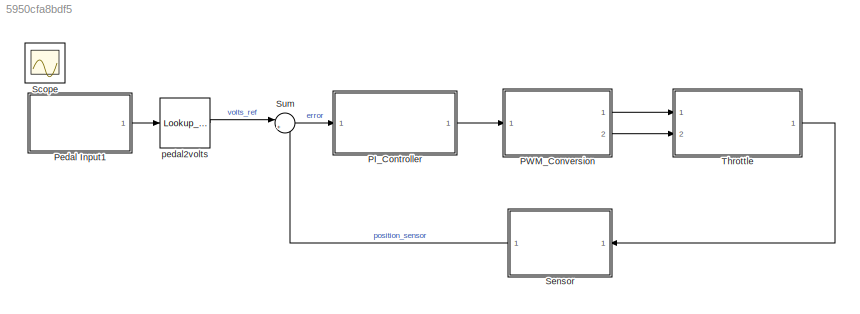
MODEL slx_5950cfa8bdf5
KIND model
CONFIG AbsTol = auto
CONFIG EnableMultiTasking = on
CONFIG FixedStep = auto
CONFIG MaxStep = auto
CONFIG MinStep = auto
CONFIG PreLoadFcn = load allParamValues.mat
CONFIG RelTol = 1e-3
CONFIG SampleTimeConstraint = Unconstrained
CONFIG Solver = ode45
CONFIG SolverName = ode45
CONFIG StartTime = 0.0
CONFIG StopTime = 10.0
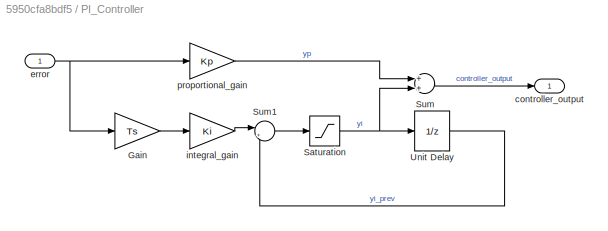
BLOCK [SubSystem] PI_Controller
  Ports = [1, 1]
  RequestExecContextInheritance = off
BLOCK [Gain] PI_Controller/Gain
  Gain = Ts
BLOCK [Saturate] PI_Controller/Saturation
  AttributesFormatString = Max: %<UpperLimit>\nMin: %<LowerLimit>
  InputPortMap = u0
  LowerLimit = -1
  Ports = [1, 1]
  UpperLimit = 1
BLOCK [Sum] PI_Controller/Sum
  Ports = [2, 1]
BLOCK [Sum] PI_Controller/Sum1
  IconShape = round
  Inputs = |++
  Ports = [2, 1]
BLOCK [UnitDelay] PI_Controller/Unit Delay
  AttributesFormatString = yi0 = %<X0>\nSample time = %<SampleTime>
  SampleTime = Ts
BLOCK [Outport] PI_Controller/controller_output
  IconDisplay = Port number
BLOCK [Inport] PI_Controller/error
  IconDisplay = Port number
  SampleTime = Ts
BLOCK [Gain] PI_Controller/integral_gain
  Gain = Ki
BLOCK [Gain] PI_Controller/proportional_gain
  Gain = Kp
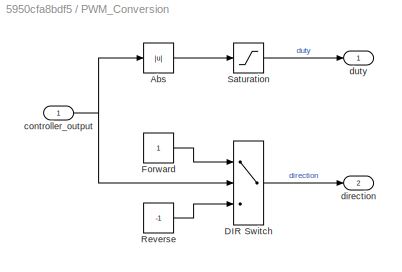
BLOCK [SubSystem] PWM_Conversion
  Ports = [1, 2]
  RequestExecContextInheritance = off
BLOCK [Outport] PWM_Conversion/ direction
  IconDisplay = Port number
  Port = 2
BLOCK [Abs] PWM_Conversion/Abs
  SaturateOnIntegerOverflow = off
BLOCK [Switch] PWM_Conversion/DIR Switch
  AttributesFormatString = Criteria: %<Criteria>\nThreshold: %<Threshold>
  InputSameDT = off
  SaturateOnIntegerOverflow = off
BLOCK [Constant] PWM_Conversion/Forward
  OutDataTypeStr = double
BLOCK [Constant] PWM_Conversion/Reverse
  OutDataTypeStr = double
  Value = -1
BLOCK [Saturate] PWM_Conversion/Saturation
  AttributesFormatString = %<LowerLimit> < duty < %<UpperLimit>
  InputPortMap = u0
  LowerLimit = 0
  Ports = [1, 1]
  UpperLimit = 1
BLOCK [Inport] PWM_Conversion/controller_output
  IconDisplay = Port number
BLOCK [Outport] PWM_Conversion/duty 
  IconDisplay = Port number
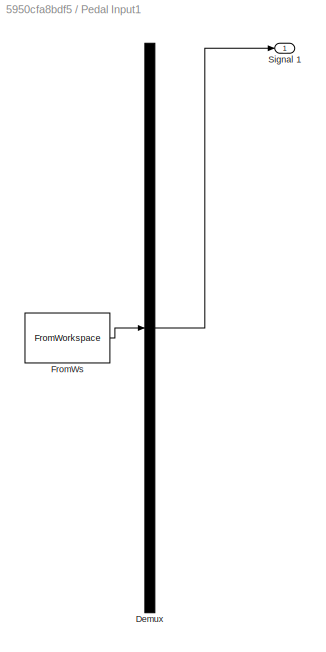
BLOCK [SubSystem] Pedal Input1
  AttributesFormatString = 0 - Pedal not pressed\n1 - Pedal fully pressed
  ClipboardFcn = sigbuilder_block('clipboard');
  CloseFcn = sigbuilder_block('close');
  ContinueFcn = sigbuilder_block('continue')
  CopyFcn = sigbuilder_block('copy');
  DeleteFcn = sigbuilder_block('delete');
  LoadFcn = sigbuilder_block('load');
  MaskHideContents = on
  ModelCloseFcn = sigbuilder_block('modelClose');
  NameChangeFcn = sigbuilder_block('namechange');
  OpenFcn = sigbuilder_block('open',[437.6 199.2 550.4 400 ]);
  PauseFcn = sigbuilder_block('pause')
  Ports = [0, 1]
  PreSaveFcn = sigbuilder_block('preSave');
  RequestExecContextInheritance = off
  StartFcn = sigbuilder_block('start');
  StopFcn = sigbuilder_block('stop');
  Tag = STV Subsys
BLOCK [Demux] Pedal Input1/Demux
  Outputs = 1
  Ports = [1, 1]
  Tag = STV Demux
BLOCK [FromWorkspace] Pedal Input1/FromWs
  SampleTime = 0
  Tag = STV FromWs
  VariableName = tuvar
  ZeroCross = on
BLOCK [Outport] Pedal Input1/Signal 1
  IconDisplay = Port number
  Tag = STV Outport
BLOCK [Scope] Scope
  Floating = off
  IOType = viewer
  NumInputPorts = 1
  Ports = []
  ScopeSpecificationString = Simulink.scopes.TimeScopeBlockCfg('CurrentConfiguration', extmgr.ConfigurationSet(extmgr.Configuration('Core','General UI',true),extmgr.Configuration('Core','Source UI',true),extmgr.Configuration('Sources','WiredSimulink',true,'DataLoggingMaxPoints','7500','DataLoggingLimitDataPoints',true,'DataLoggingSaveFormat','Array','DataLoggingDecimation','1','DataLoggingDecimateData',true),extmgr.Configurat...<+2102ch>
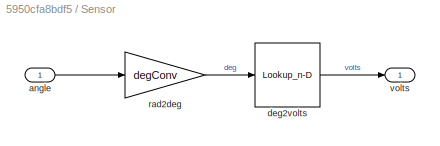
BLOCK [SubSystem] Sensor
  Ports = [1, 1]
  RequestExecContextInheritance = off
BLOCK [Inport] Sensor/angle
  IconDisplay = Port number
BLOCK [Lookup_n-D] Sensor/deg2volts
  BreakpointsForDimension1 = [0 90]
  NumberOfTableDimensions = 1
  Ports = [1, 1]
  RndMeth = Simplest
  Table = [0.5 4.5]
BLOCK [Gain] Sensor/rad2deg
  Gain = degConv
BLOCK [Outport] Sensor/volts
  IconDisplay = Port number
BLOCK [Sum] Sum
  IconShape = round
  InputSameDT = off
  Inputs = |+-
  OutDataTypeStr = Inherit: Inherit via internal rule
  Ports = [2, 1]
  SaturateOnIntegerOverflow = off
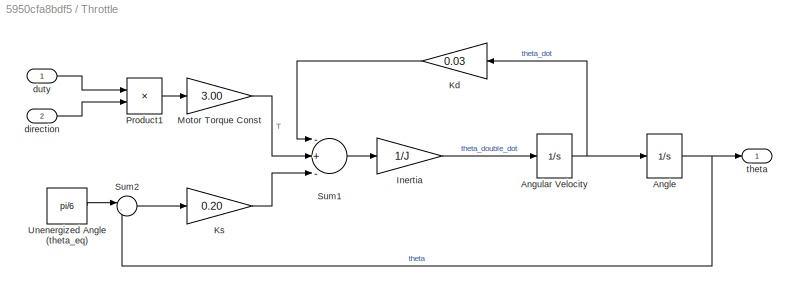
BLOCK [SubSystem] Throttle
  Ports = [2, 1]
  RequestExecContextInheritance = off
BLOCK [Integrator] Throttle/Angle
  AttributesFormatString = Initial condition: %<InitialCondition>\n%<LowerSaturationLimit> <= theta <= %<UpperSaturationLimit>
  InitialCondition = pi/6
  LimitOutput = on
  LowerSaturationLimit = 0
  Ports = [1, 1]
  UpperSaturationLimit = pi/2
BLOCK [Integrator] Throttle/Angular Velocity
  AttributesFormatString = Initial condition: %<InitialCondition>
  Ports = [1, 1]
BLOCK [Gain] Throttle/Inertia
  Gain = 1/J
BLOCK [Gain] Throttle/Kd
  Gain = 0.03
BLOCK [Gain] Throttle/Ks
  Gain = 0.20
BLOCK [Gain] Throttle/Motor Torque Const
  Gain = 3.00
BLOCK [Product] Throttle/Product1
  InputSameDT = off
  Ports = [2, 1]
  RndMeth = Floor
BLOCK [Sum] Throttle/Sum1
  InputSameDT = off
  Inputs = -+-
  OutDataTypeStr = Inherit: Inherit via internal rule
  Ports = [3, 1]
BLOCK [Sum] Throttle/Sum2
  IconShape = round
  InputSameDT = off
  Inputs = |-+
  OutDataTypeStr = Inherit: Inherit via internal rule
  Ports = [2, 1]
BLOCK [Constant] Throttle/Unenergized Angle (theta_eq)
  Value = pi/6
BLOCK [Inport] Throttle/direction
  IconDisplay = Port number
  Port = 2
BLOCK [Inport] Throttle/duty
  IconDisplay = Port number
BLOCK [Outport] Throttle/theta
  IconDisplay = Port number
BLOCK [Lookup_n-D] pedal2volts
  BreakpointsForDimension1 = [0 1]
  NumberOfTableDimensions = 1
  Ports = [1, 1]
  RndMeth = Simplest
  Table = [0.5 4.5]
LINE PI_Controller/Gain:1 -> PI_Controller/integral_gain:1
NET PI_Controller/Saturation:1 -> PI_Controller/Sum:2, PI_Controller/Unit Delay:1
LINE PI_Controller/Sum1:1 -> PI_Controller/Saturation:1
LINE PI_Controller/Sum:1 -> PI_Controller/controller_output:1
LINE PI_Controller/Unit Delay:1 -> PI_Controller/Sum1:2
NET PI_Controller/error:1 -> PI_Controller/Gain:1, PI_Controller/proportional_gain:1
LINE PI_Controller/integral_gain:1 -> PI_Controller/Sum1:1
LINE PI_Controller/proportional_gain:1 -> PI_Controller/Sum:1
LINE PI_Controller:1 -> PWM_Conversion:1
LINE PWM_Conversion/Abs:1 -> PWM_Conversion/Saturation:1
LINE PWM_Conversion/DIR Switch:1 -> PWM_Conversion/ direction:1
LINE PWM_Conversion/Forward:1 -> PWM_Conversion/DIR Switch:1
LINE PWM_Conversion/Reverse:1 -> PWM_Conversion/DIR Switch:3
LINE PWM_Conversion/Saturation:1 -> PWM_Conversion/duty :1
NET PWM_Conversion/controller_output:1 -> PWM_Conversion/Abs:1, PWM_Conversion/DIR Switch:2
LINE PWM_Conversion:1 -> Throttle:1
LINE PWM_Conversion:2 -> Throttle:2
LINE Pedal Input1/Demux:1 -> Pedal Input1/Signal 1:1
LINE Pedal Input1/FromWs:1 -> Pedal Input1/Demux:1
LINE Pedal Input1:1 -> pedal2volts:1
LINE Sensor/angle:1 -> Sensor/rad2deg:1
LINE Sensor/deg2volts:1 -> Sensor/volts:1
LINE Sensor/rad2deg:1 -> Sensor/deg2volts:1
LINE Sensor:1 -> Sum:2
LINE Sum:1 -> PI_Controller:1
NET Throttle/Angle:1 -> Throttle/Sum2:2, Throttle/theta:1
NET Throttle/Angular Velocity:1 -> Throttle/Angle:1, Throttle/Kd:1
LINE Throttle/Inertia:1 -> Throttle/Angular Velocity:1
LINE Throttle/Kd:1 -> Throttle/Sum1:1
LINE Throttle/Ks:1 -> Throttle/Sum1:3
LINE Throttle/Motor Torque Const:1 -> Throttle/Sum1:2
LINE Throttle/Product1:1 -> Throttle/Motor Torque Const:1
LINE Throttle/Sum1:1 -> Throttle/Inertia:1
LINE Throttle/Sum2:1 -> Throttle/Ks:1
LINE Throttle/Unenergized Angle (theta_eq):1 -> Throttle/Sum2:1
LINE Throttle/direction:1 -> Throttle/Product1:2
LINE Throttle/duty:1 -> Throttle/Product1:1
LINE Throttle:1 -> Sensor:1
LINE pedal2volts:1 -> Sum:1
note: NET lines group one-source signal fan-out (src -> all destinations, sorted); 1:1 wires keep LINE
